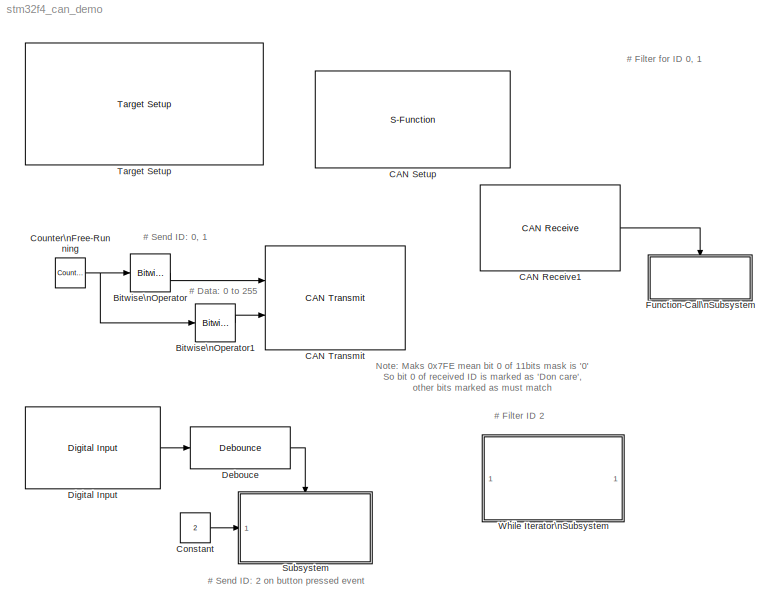
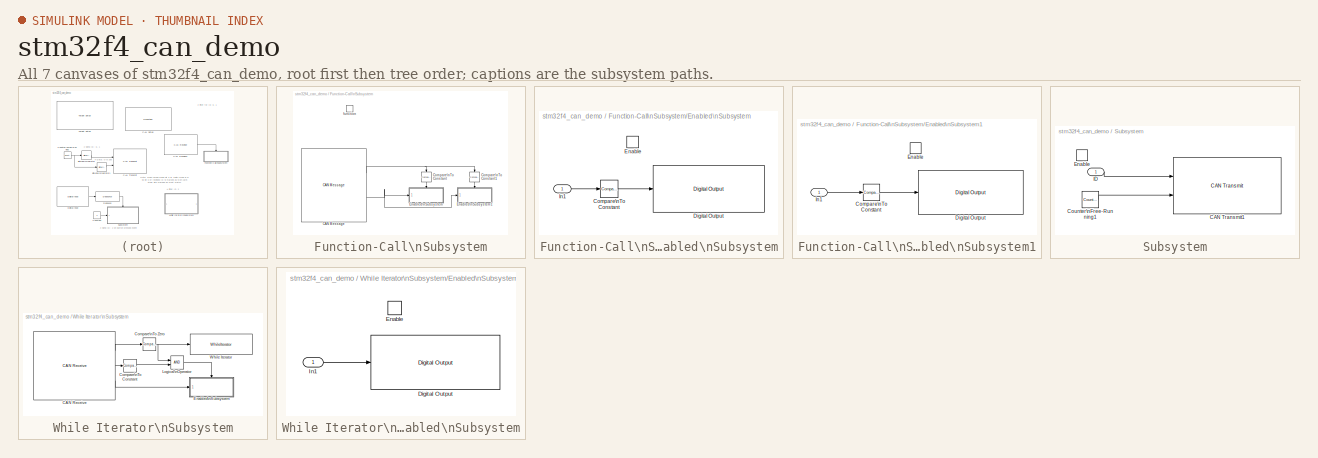
[diagram: thumbnail index - all 7 canvases of the model, root first then tree order]
MODEL stm32f4_can_demo
KIND model
CONFIG PreLoadFcn = waijung.modelPreload; % Required for working with Waijung Blockset. Do not remove.
BLOCK [Reference] Bitwise\nOperator  REF=simulink/Logic and Bit\nOperations/Bitwise\nOperator
  BitMask = 1
  BitMaskRealWorld = Stored Integer
  NumInputPorts = 1
  Ports = [1, 1]
  SID = 1
  SourceBlock = simulink/Logic and Bit\nOperations/Bitwise\nOperator
  SourceType = Bitwise Operator
  UseBitMask = on
  logicop = AND
BLOCK [Reference] Bitwise\nOperator1  REF=simulink/Logic and Bit\nOperations/Bitwise\nOperator
  BitMask = hex2dec('F')
  BitMaskRealWorld = Stored Integer
  NumInputPorts = 1
  Ports = [1, 1]
  SID = 2
  SourceBlock = simulink/Logic and Bit\nOperations/Bitwise\nOperator
  SourceType = Bitwise Operator
  UseBitMask = on
  logicop = AND
BLOCK [Reference] CAN Receive1  REF=stm32f4_canbus_lib/CAN Receive
  Ports = [0, 1]
  SID = 47
  SourceBlock = stm32f4_canbus_lib/CAN Receive
  SourceType = stm32f4_can
  blockid = CANReceive1
  buffersize = 8
  canmodule = 1
  compat = 0
  conf = Rx
  confstr = [\"Standard\",\"Mask\",\"0\",\"2046\",\"off\",\"int8\",\"int32\",\"uint16\",\"Not used\",\"Not used\",\"Not used\",\"Not used\",\"Not used\",\"8\",\"0\",\"0\",\"FFC0\",\"4\"]
  data0type = int8
  data1type = int32
  data2type = uint16
  data3type = Not used
  data4type = Not used
  data5type = Not used
  data6type = Not used
  data7type = Not used
  datatype = single
  enableisr = on
  filtertype = Mask
  id = 0
  idmask = hex2dec('7FE')
  idtype = Standard
  inputarray = []
  inputlabelarray = {}
  outputarray = [7]
  outputlabelarray = {'Call ISR' }
  sampletime = -1
  sampletimestr = 0.01
  usedlc = off
BLOCK [S-Function] CAN Setup
  EnableBusSupport = off
  FunctionName = stm32f4_can
  Parameters = conf,canmodule,0,inputarray,outputarray,'','',confstr,sampletime,sampletimestr,blockid
  Ports = []
  SID = 4
BLOCK [Reference] CAN Transmit  REF=stm32f4_canbus_lib/CAN Transmit
  Ports = [2]
  SID = 5
  SourceBlock = stm32f4_canbus_lib/CAN Transmit
  SourceType = stm32f4_can
  blockid = CANTransmit
  canmodule = 1
  compat = 0
  conf = Tx
  confstr = [\"Blocking\",\"0.001\",\"Standard\",\"off\",\"0\",\"on\",\"4\",\"off\",\"uint32\",\"Not used\",\"Not used\",\"Not used\",\"Not used\",\"Not used\",\"Not used\",\"Not used\"]
  data0type = uint32
  data1type = Not used
  data2type = Not used
  data3type = Not used
  data4type = Not used
  data5type = Not used
  data6type = Not used
  data7type = Not used
  datatype = uint32
  dlc = 4
  enablestatus = off
  id = 0
  idtype = Standard
  inputarray = [ -1, 7]
  inputlabelarray = { 'ID', 'D0 (uint32)' }
  outputarray = []
  outputlabelarray = {}
  sampletime = -1
  sampletimestr = 0.01
  specificdlc = on
  specificid = off
  timeout = 0.001
  transfer = Blocking
BLOCK [Constant] Constant
  SID = 6
  SampleTime = -1
  Value = 2
BLOCK [Reference] Counter\nFree-Running  REF=simulink/Sources/Counter\nFree-Running
  NumBits = 32
  Ports = [0, 1]
  SID = 7
  SourceBlock = simulink/Sources/Counter\nFree-Running
  SourceType = Counter Free-Running
  tsamp = 0.01
BLOCK [Reference] Debouce  REF=stm32f4_io_lib/Debounce
  Ports = [1, 1]
  SID = 8
  SourceBlock = stm32f4_io_lib/Debounce
  debounce = 4
  mode = Single Pulse
  prescale = 4
BLOCK [Reference] Digital Input  REF=stm32f4_io_lib/Digital Input
  Ports = [0, 1]
  SID = 9
  SourceBlock = stm32f4_io_lib/Digital Input
  SourceType = stm32f4_digital_input
  bitbandingstr = \n#define DigitalInput_A0 Peripheral_BB(GPIOA->IDR, 0)  /* Output pin */
  blockid = DigitalInput
  cinputportlabel = In1, In2
  coutputportlabel = Out1, Out2
  enablecustomportlabel = off
  glabalinit = off
  pinstr = GPIO_Pin_0
  port = A
  porttype = None
  porttypestr = NOPULL
  sampletime = 0.01
  sampletimestr = 0.01
  speed = 100
  use_pin0 = on
  use_pin1 = off
  use_pin10 = off
  use_pin11 = off
  use_pin12 = off
  use_pin13 = off
  use_pin14 = off
  use_pin15 = off
  use_pin2 = off
  use_pin3 = off
  use_pin4 = off
  use_pin5 = off
  use_pin6 = off
  use_pin7 = off
  use_pin8 = off
  use_pin9 = off
  usedpinarray = [1  0  0  0  0  0  0  0  0  0  0  0  0  0  0  0]
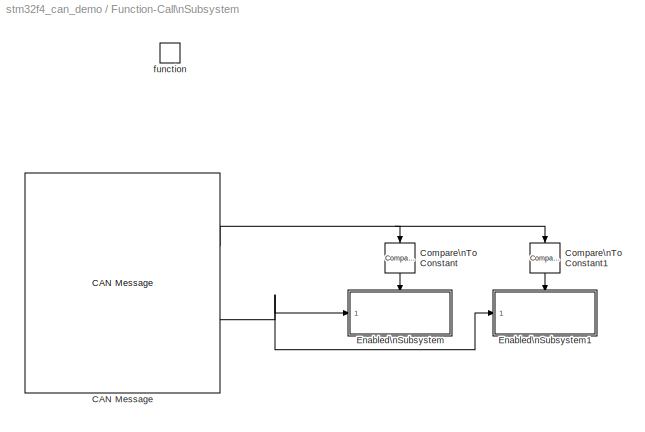
BLOCK [SubSystem] Function-Call\nSubsystem
  FunctionWithSeparateData = off
  MaskHideContents = off
  MinAlgLoopOccurrences = off
  Opaque = off
  Ports = [0, 0, 0, 1]
  PropExecContextOutsideSubsystem = off
  RTWSystemCode = Auto
  RequestExecContextInheritance = off
  SID = 10
  TreatAsAtomicUnit = on
BLOCK [Reference] Function-Call\nSubsystem/CAN Message  REF=stm32f4_canbus_lib/CAN Message
  Ports = [0, 2]
  SID = 12
  SourceBlock = stm32f4_canbus_lib/CAN Message
  SourceType = stm32f4_can
  blockid = FunctionCallSubsystemCANMessage
  canmodule = 1
  compat = 0
  conf = Msg
  confstr = [\"off\",\"uint32\",\"Not used\",\"Not used\",\"Not used\",\"Not used\",\"Not used\",\"Not used\",\"Not used\"]
  data0type = uint32
  data1type = Not used
  data2type = Not used
  data3type = Not used
  data4type = Not used
  data5type = Not used
  data6type = Not used
  data7type = Not used
  datatype = uint32
  inputarray = []
  inputlabelarray = {}
  outputarray = [ 7, 7]
  outputlabelarray = {'ID', 'D0 (uint32)' }
  sampletime = -1
  sampletimestr = -1
  usedlc = off
BLOCK [Reference] Function-Call\nSubsystem/Compare\nTo Constant  REF=simulink/Logic and Bit\nOperations/Compare\nTo Constant
  OutDataTypeStr = uint8
  Ports = [1, 1]
  SID = 13
  SourceBlock = simulink/Logic and Bit\nOperations/Compare\nTo Constant
  SourceType = Compare To Constant
  ZeroCross = off
  const = 0
  relop = ==
BLOCK [Reference] Function-Call\nSubsystem/Compare\nTo Constant1  REF=simulink/Logic and Bit\nOperations/Compare\nTo Constant
  OutDataTypeStr = uint8
  Ports = [1, 1]
  SID = 14
  SourceBlock = simulink/Logic and Bit\nOperations/Compare\nTo Constant
  SourceType = Compare To Constant
  ZeroCross = off
  const = 1
  relop = ==
BLOCK [SubSystem] Function-Call\nSubsystem/Enabled\nSubsystem
  FunctionWithSeparateData = off
  MaskHideContents = off
  MinAlgLoopOccurrences = off
  Opaque = off
  Ports = [1, 0, 1]
  PropExecContextOutsideSubsystem = off
  RTWSystemCode = Auto
  RequestExecContextInheritance = off
  SID = 15
  TreatAsAtomicUnit = on
BLOCK [Reference] Function-Call\nSubsystem/Enabled\nSubsystem/Compare\nTo Constant  REF=simulink/Logic and Bit\nOperations/Compare\nTo Constant
  OutDataTypeStr = uint8
  Ports = [1, 1]
  SID = 18
  SourceBlock = simulink/Logic and Bit\nOperations/Compare\nTo Constant
  SourceType = Compare To Constant
  ZeroCross = off
  const = 8
  relop = >=
BLOCK [Reference] Function-Call\nSubsystem/Enabled\nSubsystem/Digital Output  REF=stm32f4_io_lib/Digital Output
  Ports = [1]
  SID = 19
  SourceBlock = stm32f4_io_lib/Digital Output
  SourceType = stm32f4_digital_output
  bitbandingstr = \n#define FunctionCallSubsystemEnabledSubsystemDigitalOutput_D12 Peripheral_BB(GPIOD->ODR, 12)  /* Output pin */
  blockid = FunctionCallSubsystemEnabledSubsystemDigitalOutput
  cinputportlabel = In1, In2
  coutputportlabel = 0
  enablecustomportlabel = off
  globalinit = off
  pinstr = GPIO_Pin_12
  port = D
  porttype = Push Pull
  porttypestr = PP
  sampletime = -1
  sampletimestr = -1
  speed = 100
  use_bitband = on
  use_pin0 = off
  use_pin1 = off
  use_pin10 = off
  use_pin11 = off
  use_pin12 = on
  use_pin13 = off
  use_pin14 = off
  use_pin15 = off
  use_pin2 = off
  use_pin3 = off
  use_pin4 = off
  use_pin5 = off
  use_pin6 = off
  use_pin7 = off
  use_pin8 = off
  use_pin9 = off
  usedpinarray = [0  0  0  0  0  0  0  0  0  0  0  0  1  0  0  0]
BLOCK [EnablePort] Function-Call\nSubsystem/Enabled\nSubsystem/Enable
  Ports = []
  PropagateVarSize = During execution
  SID = 17
BLOCK [Inport] Function-Call\nSubsystem/Enabled\nSubsystem/In1
  IconDisplay = Port number
  SID = 16
BLOCK [SubSystem] Function-Call\nSubsystem/Enabled\nSubsystem1
  FunctionWithSeparateData = off
  MaskHideContents = off
  MinAlgLoopOccurrences = off
  Opaque = off
  Ports = [1, 0, 1]
  PropExecContextOutsideSubsystem = off
  RTWSystemCode = Auto
  RequestExecContextInheritance = off
  SID = 20
  TreatAsAtomicUnit = on
BLOCK [Reference] Function-Call\nSubsystem/Enabled\nSubsystem1/Compare\nTo Constant  REF=simulink/Logic and Bit\nOperations/Compare\nTo Constant
  OutDataTypeStr = uint8
  Ports = [1, 1]
  SID = 23
  SourceBlock = simulink/Logic and Bit\nOperations/Compare\nTo Constant
  SourceType = Compare To Constant
  ZeroCross = off
  const = 8
  relop = <
BLOCK [Reference] Function-Call\nSubsystem/Enabled\nSubsystem1/Digital Output  REF=stm32f4_io_lib/Digital Output
  Ports = [1]
  SID = 24
  SourceBlock = stm32f4_io_lib/Digital Output
  SourceType = stm32f4_digital_output
  bitbandingstr = \n#define FunctionCallSubsystemEnabledSubsystem1DigitalOutput_D13 Peripheral_BB(GPIOD->ODR, 13)  /* Output pin */
  blockid = FunctionCallSubsystemEnabledSubsystem1DigitalOutput
  cinputportlabel = In1, In2
  coutputportlabel = 0
  enablecustomportlabel = off
  globalinit = off
  pinstr = GPIO_Pin_13
  port = D
  porttype = Push Pull
  porttypestr = PP
  sampletime = -1
  sampletimestr = -1
  speed = 100
  use_bitband = on
  use_pin0 = off
  use_pin1 = off
  use_pin10 = off
  use_pin11 = off
  use_pin12 = off
  use_pin13 = on
  use_pin14 = off
  use_pin15 = off
  use_pin2 = off
  use_pin3 = off
  use_pin4 = off
  use_pin5 = off
  use_pin6 = off
  use_pin7 = off
  use_pin8 = off
  use_pin9 = off
  usedpinarray = [0  0  0  0  0  0  0  0  0  0  0  0  0  1  0  0]
BLOCK [EnablePort] Function-Call\nSubsystem/Enabled\nSubsystem1/Enable
  Ports = []
  PropagateVarSize = During execution
  SID = 22
BLOCK [Inport] Function-Call\nSubsystem/Enabled\nSubsystem1/In1
  IconDisplay = Port number
  SID = 21
BLOCK [TriggerPort] Function-Call\nSubsystem/function
  Ports = []
  SID = 11
  StatesWhenEnabling = held
  TriggerType = function-call
BLOCK [SubSystem] Subsystem
  FunctionWithSeparateData = off
  MaskHideContents = off
  MinAlgLoopOccurrences = off
  Opaque = off
  Ports = [1, 0, 1]
  PropExecContextOutsideSubsystem = off
  RTWSystemCode = Auto
  RequestExecContextInheritance = off
  SID = 25
BLOCK [Reference] Subsystem/CAN Transmit1  REF=stm32f4_canbus_lib/CAN Transmit
  Ports = [2]
  SID = 28
  SourceBlock = stm32f4_canbus_lib/CAN Transmit
  SourceType = stm32f4_can
  blockid = SubsystemCANTransmit1
  canmodule = 1
  compat = 0
  conf = Tx
  confstr = [\"Blocking\",\"0.001\",\"Standard\",\"off\",\"2\",\"on\",\"4\",\"off\",\"uint32\",\"Not used\",\"Not used\",\"Not used\",\"Not used\",\"Not used\",\"Not used\",\"Not used\"]
  data0type = uint32
  data1type = Not used
  data2type = Not used
  data3type = Not used
  data4type = Not used
  data5type = Not used
  data6type = Not used
  data7type = Not used
  datatype = uint32
  dlc = 4
  enablestatus = off
  id = 2
  idtype = Standard
  inputarray = [ -1, 7]
  inputlabelarray = { 'ID', 'D0 (uint32)' }
  outputarray = []
  outputlabelarray = {}
  sampletime = -1
  sampletimestr = 0.01
  specificdlc = on
  specificid = off
  timeout = 0.001
  transfer = Blocking
BLOCK [Reference] Subsystem/Counter\nFree-Running1  REF=simulink/Sources/Counter\nFree-Running
  NumBits = 32
  Ports = [0, 1]
  SID = 29
  SourceBlock = simulink/Sources/Counter\nFree-Running
  SourceType = Counter Free-Running
  tsamp = -1
BLOCK [EnablePort] Subsystem/Enable
  Ports = []
  PropagateVarSize = During execution
  SID = 27
BLOCK [Inport] Subsystem/ID
  IconDisplay = Port number
  SID = 26
BLOCK [Reference] Target Setup  REF=stm32f4_device_config_lib/Target Setup
  Ports = []
  Priority = 100
  SID = 30
  SourceBlock = stm32f4_device_config_lib/Target Setup
  SourceType = stm32f4_target_setup
  assemblercontrolstr = $(patsubst %, -I%, .) -mcpu=cortex-m4 -mthumb -mthumb-interwork -mfloat-abi=hard -mfpu=fpv4-sp-d16 -ffast-math -Wall -Wextra -Ofast -Wa,-amhls=$(<:.s=.lst) -D__STACK_SIZE=$(STACK_SIZE) -D__HEAP_SIZE=$(HEAP_SIZE)
  blockid = TargetSetup
  clockconfig = HSEOSC-8MHz
  compiler = GNU ARM
  compilercontrolstr = $(patsubst %, -I%, .) -mcpu=cortex-m4 -mthumb -mthumb-interwork -mfloat-abi=hard -mfpu=fpv4-sp-d16 -ffast-math -Wall -Wextra -Ofast
  editctrlstr = on
  enableautocompiledownload = on
  execprofile = None
  flashlength = 1024k
  flashorigin = 0x8000000
  fullchiperase = off
  hclk = 168000000
  heapsize = 0x2000
  hseval = 8000000
  lastprofileruart = 3
  linkercontrolstr = -T$(LD_SCRIPT) -g -Wl,-Map=$(MAP),--cref,--no-warn-mismatch -mcpu=cortex-m4 -mthumb -mthumb-interwork -mfloat-abi=hard -mfpu=fpv4-sp-d16 -specs=nosys.specs
  manualsetsampletime = off
  mcu = STM32F417IG (LQFP176)
  mcustr = STM32F417IG
  previous_compiler = GNU ARM
  profilerbaud = 500000
  profilerinitstr = 0.01,168000000,1680000,500000,0
  profilertxpin = D8
  profileruart = 3
  programmerinterface = ST-Link
  ramlength = 128k
  ramorigin = 0x20000000
  runafterdownload = on
  sampletime = 0.01
  showmemoryconfiguration = off
  stacksize = 0x2000
  system_stm32f4xx_c_path = <path>
  systickreloadvalue = 1680000
  useextram = off
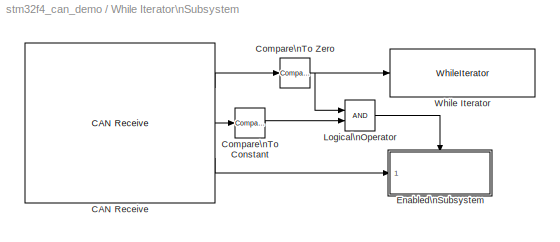
BLOCK [SubSystem] While Iterator\nSubsystem
  FunctionWithSeparateData = off
  MaskHideContents = off
  MinAlgLoopOccurrences = off
  Opaque = off
  Ports = []
  PropExecContextOutsideSubsystem = off
  RTWSystemCode = Auto
  RequestExecContextInheritance = off
  SID = 31
  TreatAsAtomicUnit = on
BLOCK [Reference] While Iterator\nSubsystem/CAN Receive  REF=stm32f4_canbus_lib/CAN Receive
  Ports = [0, 3]
  SID = 32
  SourceBlock = stm32f4_canbus_lib/CAN Receive
  SourceType = stm32f4_can
  blockid = WhileIteratorSubsystemCANReceive
  buffersize = 8
  canmodule = 1
  compat = 0
  conf = Rx
  confstr = [\"Standard\",\"Specific\",\"2\",\"0\",\"off\",\"uint32\",\"Not used\",\"Not used\",\"Not used\",\"Not used\",\"Not used\",\"Not used\",\"Not used\",\"8\",\"40\",\"0\",\"FFE0\",\"4\"]
  data0type = uint32
  data1type = Not used
  data2type = Not used
  data3type = Not used
  data4type = Not used
  data5type = Not used
  data6type = Not used
  data7type = Not used
  datatype = uint32
  enableisr = off
  filtertype = Specific
  id = 2
  idmask = 0
  idtype = Standard
  inputarray = []
  inputlabelarray = {}
  outputarray = [ 5, 7, 7]
  outputlabelarray = { 'Msg Pending','ID', 'D0 (uint32)' }
  sampletime = -1
  sampletimestr = -1
  usedlc = off
BLOCK [Reference] While Iterator\nSubsystem/Compare\nTo Constant  REF=simulink/Logic and Bit\nOperations/Compare\nTo Constant
  OutDataTypeStr = uint8
  Ports = [1, 1]
  SID = 33
  SourceBlock = simulink/Logic and Bit\nOperations/Compare\nTo Constant
  SourceType = Compare To Constant
  ZeroCross = off
  const = 2
  relop = ==
BLOCK [Reference] While Iterator\nSubsystem/Compare\nTo Zero  REF=simulink/Logic and Bit\nOperations/Compare\nTo Zero
  OutDataTypeStr = uint8
  Ports = [1, 1]
  SID = 34
  SourceBlock = simulink/Logic and Bit\nOperations/Compare\nTo Zero
  SourceType = Compare To Zero
  ZeroCross = off
  relop = >
BLOCK [SubSystem] While Iterator\nSubsystem/Enabled\nSubsystem
  FunctionWithSeparateData = off
  MaskHideContents = off
  MinAlgLoopOccurrences = off
  Opaque = off
  Ports = [1, 0, 1]
  PropExecContextOutsideSubsystem = off
  RTWSystemCode = Auto
  RequestExecContextInheritance = off
  SID = 35
  TreatAsAtomicUnit = on
BLOCK [Reference] While Iterator\nSubsystem/Enabled\nSubsystem/Digital Output  REF=stm32f4_io_lib/Digital Output
  Ports = [1]
  SID = 38
  SourceBlock = stm32f4_io_lib/Digital Output
  SourceType = stm32f4_digital_output
  bitbandingstr = \n#define WhileIteratorSubsystemEnabledSubsystemDigitalOutput_D14 Peripheral_BB(GPIOD->ODR, 14)  /* Output pin */
  blockid = WhileIteratorSubsystemEnabledSubsystemDigitalOutput
  cinputportlabel = In1, In2
  coutputportlabel = 0
  enablecustomportlabel = off
  globalinit = off
  pinstr = GPIO_Pin_14
  port = D
  porttype = Push Pull
  porttypestr = PP
  sampletime = -1
  sampletimestr = -1
  speed = 100
  use_bitband = on
  use_pin0 = off
  use_pin1 = off
  use_pin10 = off
  use_pin11 = off
  use_pin12 = off
  use_pin13 = off
  use_pin14 = on
  use_pin15 = off
  use_pin2 = off
  use_pin3 = off
  use_pin4 = off
  use_pin5 = off
  use_pin6 = off
  use_pin7 = off
  use_pin8 = off
  use_pin9 = off
  usedpinarray = [0  0  0  0  0  0  0  0  0  0  0  0  0  0  1  0]
BLOCK [EnablePort] While Iterator\nSubsystem/Enabled\nSubsystem/Enable
  Ports = []
  PropagateVarSize = During execution
  SID = 37
BLOCK [Inport] While Iterator\nSubsystem/Enabled\nSubsystem/In1
  IconDisplay = Port number
  SID = 36
BLOCK [Logic] While Iterator\nSubsystem/Logical\nOperator
  AllPortsSameDT = off
  OutDataTypeStr = boolean
  Ports = [2, 1]
  SID = 39
BLOCK [WhileIterator] While Iterator\nSubsystem/While Iterator
  Ports = [1]
  SID = 40
  WhileBlockType = do-while
ANNOTATION (root): # Data: 0 to 255
ANNOTATION (root): # Filter ID 2
ANNOTATION (root): # Filter for ID 0, 1
ANNOTATION (root): # Send ID: 0, 1
ANNOTATION (root): # Send ID: 2 on button pressed event
ANNOTATION (root): Note: Maks 0x7FE mean bit 0 of 11bits mask is '0'\nSo bit 0 of received ID is marked as 'Don care', \nother bits marked as must match
LINE Bitwise\nOperator1:1 -> CAN Transmit:2
LINE Bitwise\nOperator:1 -> CAN Transmit:1
LINE CAN Receive1:1 -> Function-Call\nSubsystem:trigger
LINE Constant:1 -> Subsystem:1
NET Counter\nFree-Running:1 -> Bitwise\nOperator1:1, Bitwise\nOperator:1
LINE Debouce:1 -> Subsystem:enable
LINE Digital Input:1 -> Debouce:1
NET Function-Call\nSubsystem/CAN Message:1 -> Function-Call\nSubsystem/Compare\nTo Constant1:1, Function-Call\nSubsystem/Compare\nTo Constant:1
NET Function-Call\nSubsystem/CAN Message:2 -> Function-Call\nSubsystem/Enabled\nSubsystem1:1, Function-Call\nSubsystem/Enabled\nSubsystem:1
LINE Function-Call\nSubsystem/Compare\nTo Constant1:1 -> Function-Call\nSubsystem/Enabled\nSubsystem1:enable
LINE Function-Call\nSubsystem/Compare\nTo Constant:1 -> Function-Call\nSubsystem/Enabled\nSubsystem:enable
LINE Function-Call\nSubsystem/Enabled\nSubsystem/Compare\nTo Constant:1 -> Function-Call\nSubsystem/Enabled\nSubsystem/Digital Output:1
LINE Function-Call\nSubsystem/Enabled\nSubsystem/In1:1 -> Function-Call\nSubsystem/Enabled\nSubsystem/Compare\nTo Constant:1
LINE Function-Call\nSubsystem/Enabled\nSubsystem1/Compare\nTo Constant:1 -> Function-Call\nSubsystem/Enabled\nSubsystem1/Digital Output:1
LINE Function-Call\nSubsystem/Enabled\nSubsystem1/In1:1 -> Function-Call\nSubsystem/Enabled\nSubsystem1/Compare\nTo Constant:1
LINE Subsystem/Counter\nFree-Running1:1 -> Subsystem/CAN Transmit1:2
LINE Subsystem/ID:1 -> Subsystem/CAN Transmit1:1
LINE While Iterator\nSubsystem/CAN Receive:1 -> While Iterator\nSubsystem/Compare\nTo Zero:1
LINE While Iterator\nSubsystem/CAN Receive:2 -> While Iterator\nSubsystem/Compare\nTo Constant:1
LINE While Iterator\nSubsystem/CAN Receive:3 -> While Iterator\nSubsystem/Enabled\nSubsystem:1
LINE While Iterator\nSubsystem/Compare\nTo Constant:1 -> While Iterator\nSubsystem/Logical\nOperator:2
NET While Iterator\nSubsystem/Compare\nTo Zero:1 -> While Iterator\nSubsystem/Logical\nOperator:1, While Iterator\nSubsystem/While Iterator:1
LINE While Iterator\nSubsystem/Enabled\nSubsystem/In1:1 -> While Iterator\nSubsystem/Enabled\nSubsystem/Digital Output:1
LINE While Iterator\nSubsystem/Logical\nOperator:1 -> While Iterator\nSubsystem/Enabled\nSubsystem:enable
note: NET lines group one-source signal fan-out (src -> all destinations, sorted); 1:1 wires keep LINE
note: 1 file-system path scrubbed to <path> (not preserved elsewhere — flat text is the only slx artifact)
